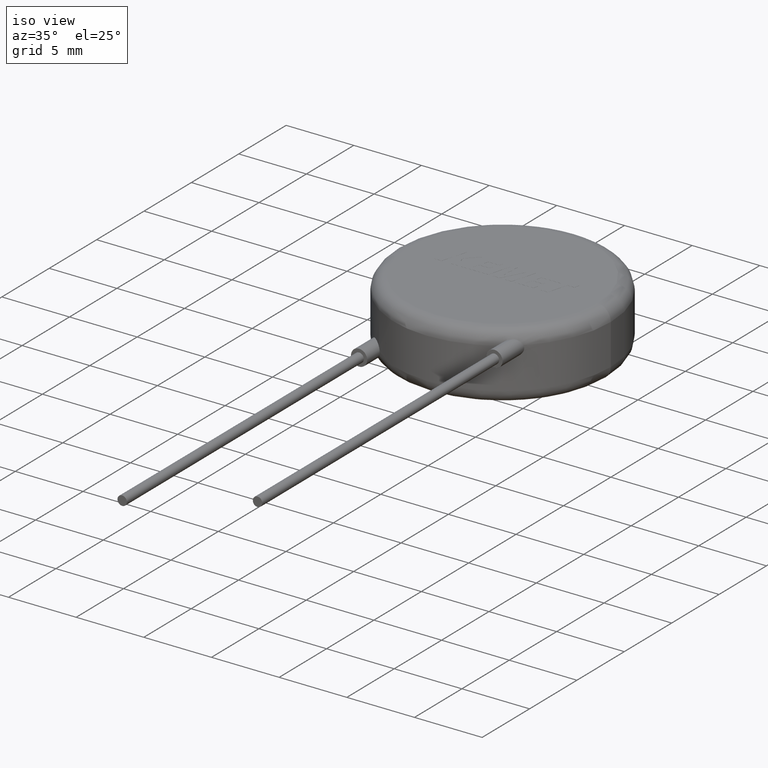
[diagram: clean part render]
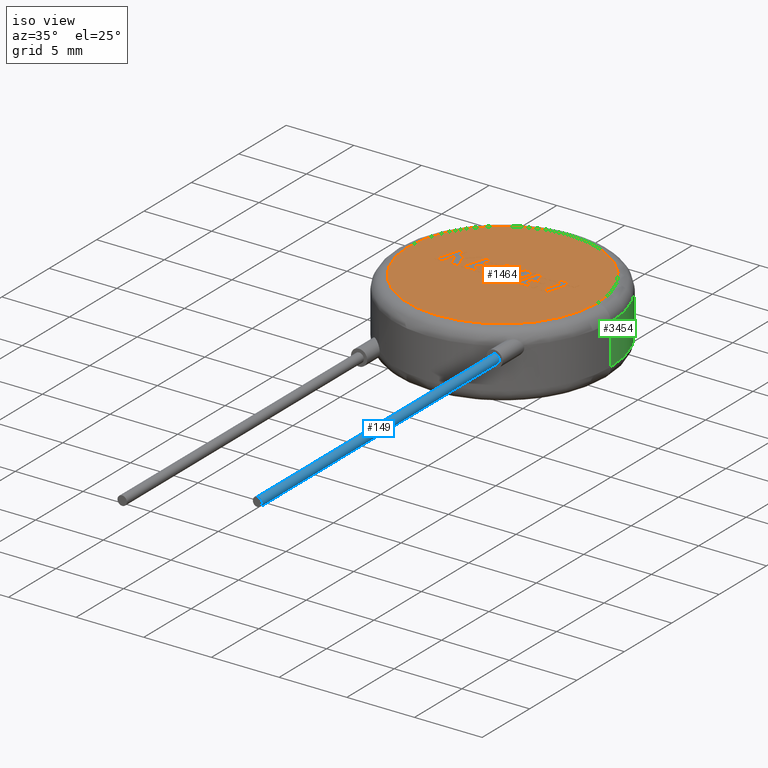
[diagram: same view with three faces highlighted in distinct colors, each labeled with its STEP entity id]
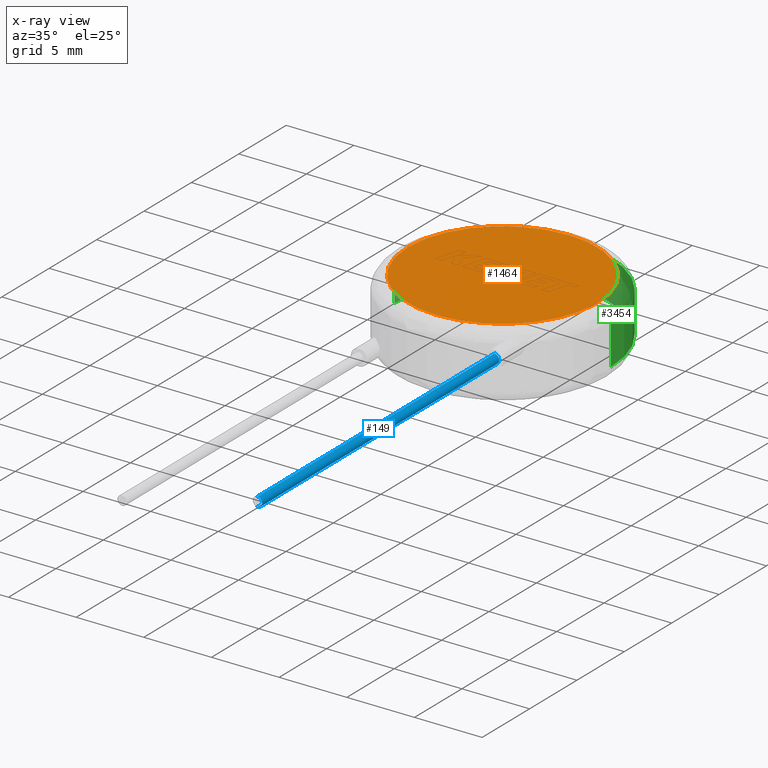
[diagram: x-ray of the same camera — body ghosted, the three highlighted faces saturated]
A machine part, iso view with three faces highlighted in distinct colors.
The next image is the same camera in x-ray (body ghosted, the three faces saturated) — at least one of them is partly hidden behind the body in this view.
Their STEP definitions:

[orange] entity #1464 — the highlighted planar face has unit normal (0, 0, 1).
#33 = CARTESIAN_POINT ( 'NONE',  ( 0.000000000000000000, 0.000000000000000000, 5.000000000000000000 ) ) ;
#98 = EDGE_LOOP ( 'NONE', ( #2507, #2293 ) ) ;
#201 = DIRECTION ( 'NONE',  ( 1.000000000000000000, 0.000000000000000000, 0.000000000000000000 ) ) ;
#239 = AXIS2_PLACEMENT_3D ( 'NONE', #1828, #2889, #201 ) ;
#335 = VERTEX_POINT ( 'NONE', #2404 ) ;
#487 = DIRECTION ( 'NONE',  ( 1.000000000000000000, 0.000000000000000000, 0.000000000000000000 ) ) ;
#497 = FACE_OUTER_BOUND ( 'NONE', #98, .T. ) ;
#574 = AXIS2_PLACEMENT_3D ( 'NONE', #33, #2461, #487 ) ;
#946 = CARTESIAN_POINT ( 'NONE',  ( 0.000000000000000000, 0.000000000000000000, 5.000000000000000000 ) ) ;
#1291 = EDGE_CURVE ( 'NONE', #335, #2582, #2098, .T. ) ;
#1464 = ADVANCED_FACE ( 'NONE', ( #497 ), #2353, .T. ) ;
#1597 = CARTESIAN_POINT ( 'NONE',  ( 7.000000000000000000, 0.000000000000000000, 5.000000000000000000 ) ) ;
#1741 = EDGE_CURVE ( 'NONE', #2582, #335, #1755, .T. ) ;
#1755 = CIRCLE ( 'NONE', #239, 7.000000000000000000 ) ;
#1828 = CARTESIAN_POINT ( 'NONE',  ( 0.000000000000000000, 0.000000000000000000, 5.000000000000000000 ) ) ;
#1985 = AXIS2_PLACEMENT_3D ( 'NONE', #946, #3133, #2081 ) ;
#2081 = DIRECTION ( 'NONE',  ( 1.000000000000000000, 0.000000000000000000, -0.000000000000000000 ) ) ;
#2098 = CIRCLE ( 'NONE', #574, 7.000000000000000000 ) ;
#2293 = ORIENTED_EDGE ( 'NONE', *, *, #1291, .T. ) ;
#2353 = PLANE ( 'NONE',  #1985 ) ;
#2404 = CARTESIAN_POINT ( 'NONE',  ( -7.000000000000000000, 9.184850993605147944E-16, 5.000000000000000000 ) ) ;
#2461 = DIRECTION ( 'NONE',  ( 0.000000000000000000, 0.000000000000000000, 1.000000000000000000 ) ) ;
#2507 = ORIENTED_EDGE ( 'NONE', *, *, #1741, .T. ) ;
#2582 = VERTEX_POINT ( 'NONE', #1597 ) ;
#2889 = DIRECTION ( 'NONE',  ( 0.000000000000000000, 0.000000000000000000, 1.000000000000000000 ) ) ;
#3133 = DIRECTION ( 'NONE',  ( 0.000000000000000000, 0.000000000000000000, 1.000000000000000000 ) ) ;

[blue] entity #149 — the highlighted cylindrical surface (edge-blend (fillet) strip) has radius 0.35 mm, axis along (-0, 1, -0).
#96 = DIRECTION ( 'NONE',  ( -0.000000000000000000, 1.000000000000000000, -0.000000000000000000 ) ) ;
#149 = ADVANCED_FACE ( 'NONE', ( #2291 ), #3297, .T. ) ;
#175 = AXIS2_PLACEMENT_3D ( 'NONE', #1996, #1724, #3422 ) ;
#228 = VECTOR ( 'NONE', #2156, 1000.000000000000000 ) ;
#281 = AXIS2_PLACEMENT_3D ( 'NONE', #712, #961, #3221 ) ;
#292 = LINE ( 'NONE', #2405, #228 ) ;
#357 = EDGE_LOOP ( 'NONE', ( #1084, #3461, #2878, #1035 ) ) ;
#366 = CARTESIAN_POINT ( 'NONE',  ( 4.999999999999999112, -8.000000000000001776, 4.150000000000001243 ) ) ;
#476 = EDGE_CURVE ( 'NONE', #2549, #1656, #2553, .T. ) ;
#519 = EDGE_CURVE ( 'NONE', #2549, #2069, #292, .T. ) ;
#567 = VERTEX_POINT ( 'NONE', #860 ) ;
#647 = DIRECTION ( 'NONE',  ( 0.000000000000000000, 0.000000000000000000, 1.000000000000000000 ) ) ;
#712 = CARTESIAN_POINT ( 'NONE',  ( 4.999999999999999112, -33.00000000000000000, 3.799999999999999822 ) ) ;
#860 = CARTESIAN_POINT ( 'NONE',  ( 4.999999999999999112, -8.000000000000000000, 4.150000000000001243 ) ) ;
#880 = DIRECTION ( 'NONE',  ( -0.000000000000000000, 1.000000000000000000, -0.000000000000000000 ) ) ;
#961 = DIRECTION ( 'NONE',  ( 1.665334536937734811E-16, -1.000000000000000000, 0.000000000000000000 ) ) ;
#1035 = ORIENTED_EDGE ( 'NONE', *, *, #3343, .F. ) ;
#1084 = ORIENTED_EDGE ( 'NONE', *, *, #476, .F. ) ;
#1274 = CARTESIAN_POINT ( 'NONE',  ( 4.999999999999999112, -8.000000000000000000, 3.449999999999999289 ) ) ;
#1448 = EDGE_CURVE ( 'NONE', #567, #2069, #3273, .T. ) ;
#1483 = VECTOR ( 'NONE', #96, 1000.000000000000000 ) ;
#1656 = VERTEX_POINT ( 'NONE', #3067 ) ;
#1709 = CARTESIAN_POINT ( 'NONE',  ( 4.999999999999999112, -8.000000000000001776, 3.799999999999999822 ) ) ;
#1724 = DIRECTION ( 'NONE',  ( 0.000000000000000000, 1.000000000000000000, 0.000000000000000000 ) ) ;
#1996 = CARTESIAN_POINT ( 'NONE',  ( 4.999999999999999112, -8.000000000000000000, 3.799999999999999822 ) ) ;
#2069 = VERTEX_POINT ( 'NONE', #1274 ) ;
#2156 = DIRECTION ( 'NONE',  ( -0.000000000000000000, 1.000000000000000000, -0.000000000000000000 ) ) ;
#2203 = AXIS2_PLACEMENT_3D ( 'NONE', #1709, #880, #647 ) ;
#2291 = FACE_OUTER_BOUND ( 'NONE', #357, .T. ) ;
#2405 = CARTESIAN_POINT ( 'NONE',  ( 4.999999999999999112, -8.000000000000001776, 3.449999999999999289 ) ) ;
#2549 = VERTEX_POINT ( 'NONE', #3400 ) ;
#2553 = CIRCLE ( 'NONE', #281, 0.3500000000000013656 ) ;
#2878 = ORIENTED_EDGE ( 'NONE', *, *, #1448, .F. ) ;
#3067 = CARTESIAN_POINT ( 'NONE',  ( 4.999999999999999112, -33.00000000000000000, 4.150000000000001243 ) ) ;
#3221 = DIRECTION ( 'NONE',  ( 1.000000000000000000, 0.000000000000000000, 0.000000000000000000 ) ) ;
#3273 = CIRCLE ( 'NONE', #175, 0.3500000000000009215 ) ;
#3297 = CYLINDRICAL_SURFACE ( 'NONE', #2203, 0.3500000000000009215 ) ;
#3323 = LINE ( 'NONE', #366, #1483 ) ;
#3343 = EDGE_CURVE ( 'NONE', #1656, #567, #3323, .T. ) ;
#3400 = CARTESIAN_POINT ( 'NONE',  ( 4.999999999999999112, -33.00000000000000000, 3.449999999999999289 ) ) ;
#3422 = DIRECTION ( 'NONE',  ( 0.000000000000000000, 0.000000000000000000, 1.000000000000000000 ) ) ;
#3461 = ORIENTED_EDGE ( 'NONE', *, *, #519, .T. ) ;

[green] entity #3454 — the highlighted cylindrical surface (partial cylindrical patch) has radius 8 mm, axis along (-0, -0, -1).
#54 = CIRCLE ( 'NONE', #2484, 8.000000000000000000 ) ;
#122 = AXIS2_PLACEMENT_3D ( 'NONE', #1979, #2551, #3030 ) ;
#268 = DIRECTION ( 'NONE',  ( -0.000000000000000000, -0.000000000000000000, -1.000000000000000000 ) ) ;
#307 = CARTESIAN_POINT ( 'NONE',  ( 0.000000000000000000, 0.000000000000000000, 5.000000000000000000 ) ) ;
#310 = CARTESIAN_POINT ( 'NONE',  ( -8.000000000000000000, 0.000000000000000000, 5.000000000000000000 ) ) ;
#313 = DIRECTION ( 'NONE',  ( -0.000000000000000000, -0.000000000000000000, -1.000000000000000000 ) ) ;
#331 = CARTESIAN_POINT ( 'NONE',  ( 0.000000000000000000, 0.000000000000000000, 4.000000000000000000 ) ) ;
#447 = ORIENTED_EDGE ( 'NONE', *, *, #1314, .T. ) ;
#465 = CIRCLE ( 'NONE', #122, 8.000000000000000000 ) ;
#564 = ORIENTED_EDGE ( 'NONE', *, *, #2958, .T. ) ;
#759 = VERTEX_POINT ( 'NONE', #812 ) ;
#812 = CARTESIAN_POINT ( 'NONE',  ( 8.000000000000000000, 9.797174393178825657E-16, 4.000000000000000000 ) ) ;
#828 = EDGE_CURVE ( 'NONE', #1490, #759, #54, .T. ) ;
#1040 = LINE ( 'NONE', #310, #1435 ) ;
#1080 = AXIS2_PLACEMENT_3D ( 'NONE', #307, #1092, #3197 ) ;
#1092 = DIRECTION ( 'NONE',  ( -0.000000000000000000, -0.000000000000000000, -1.000000000000000000 ) ) ;
#1134 = DIRECTION ( 'NONE',  ( 1.000000000000000000, 0.000000000000000000, 0.000000000000000000 ) ) ;
#1314 = EDGE_CURVE ( 'NONE', #1427, #3178, #465, .T. ) ;
#1427 = VERTEX_POINT ( 'NONE', #3050 ) ;
#1435 = VECTOR ( 'NONE', #268, 1000.000000000000000 ) ;
#1490 = VERTEX_POINT ( 'NONE', #1794 ) ;
#1794 = CARTESIAN_POINT ( 'NONE',  ( -8.000000000000000000, 0.000000000000000000, 4.000000000000000000 ) ) ;
#1896 = CYLINDRICAL_SURFACE ( 'NONE', #1080, 8.000000000000000000 ) ;
#1979 = CARTESIAN_POINT ( 'NONE',  ( 0.000000000000000000, 0.000000000000000000, 1.000000000000000000 ) ) ;
#2002 = VECTOR ( 'NONE', #3134, 1000.000000000000000 ) ;
#2051 = ORIENTED_EDGE ( 'NONE', *, *, #2655, .F. ) ;
#2068 = LINE ( 'NONE', #2083, #2002 ) ;
#2083 = CARTESIAN_POINT ( 'NONE',  ( 8.000000000000000000, 9.797174393178825657E-16, 5.000000000000000000 ) ) ;
#2367 = CARTESIAN_POINT ( 'NONE',  ( -8.000000000000000000, 0.000000000000000000, 1.000000000000000000 ) ) ;
#2447 = FACE_OUTER_BOUND ( 'NONE', #3425, .T. ) ;
#2484 = AXIS2_PLACEMENT_3D ( 'NONE', #331, #313, #1134 ) ;
#2551 = DIRECTION ( 'NONE',  ( 0.000000000000000000, 0.000000000000000000, 1.000000000000000000 ) ) ;
#2655 = EDGE_CURVE ( 'NONE', #1490, #3178, #1040, .T. ) ;
#2822 = ORIENTED_EDGE ( 'NONE', *, *, #828, .T. ) ;
#2958 = EDGE_CURVE ( 'NONE', #759, #1427, #2068, .T. ) ;
#3030 = DIRECTION ( 'NONE',  ( 1.000000000000000000, 0.000000000000000000, 0.000000000000000000 ) ) ;
#3050 = CARTESIAN_POINT ( 'NONE',  ( 8.000000000000000000, 9.797174393178825657E-16, 1.000000000000000000 ) ) ;
#3134 = DIRECTION ( 'NONE',  ( -0.000000000000000000, -0.000000000000000000, -1.000000000000000000 ) ) ;
#3178 = VERTEX_POINT ( 'NONE', #2367 ) ;
#3197 = DIRECTION ( 'NONE',  ( -1.000000000000000000, 0.000000000000000000, 0.000000000000000000 ) ) ;
#3425 = EDGE_LOOP ( 'NONE', ( #2822, #564, #447, #2051 ) ) ;
#3454 = ADVANCED_FACE ( 'NONE', ( #2447 ), #1896, .T. ) ;